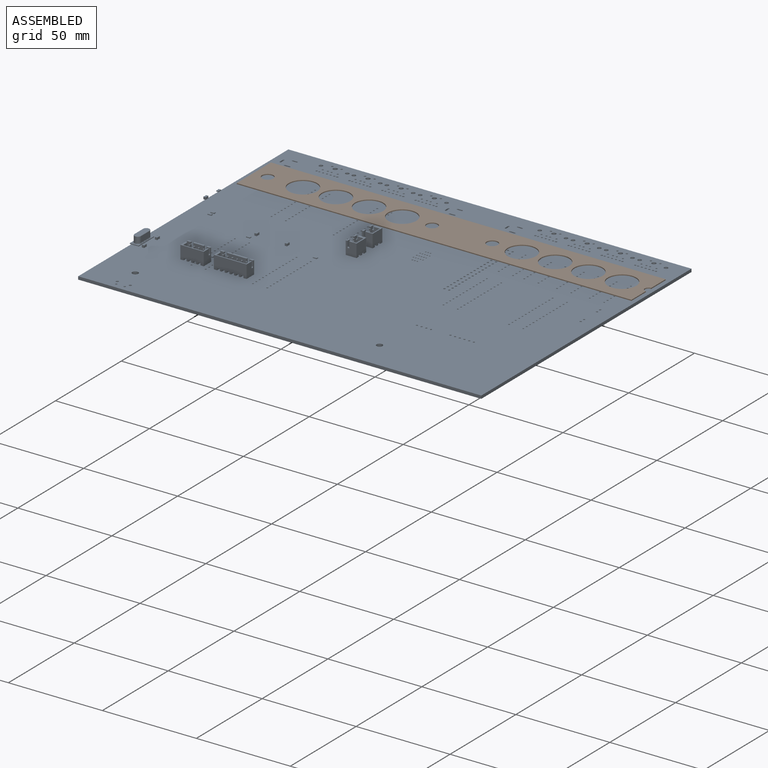
[diagram: assembled view]
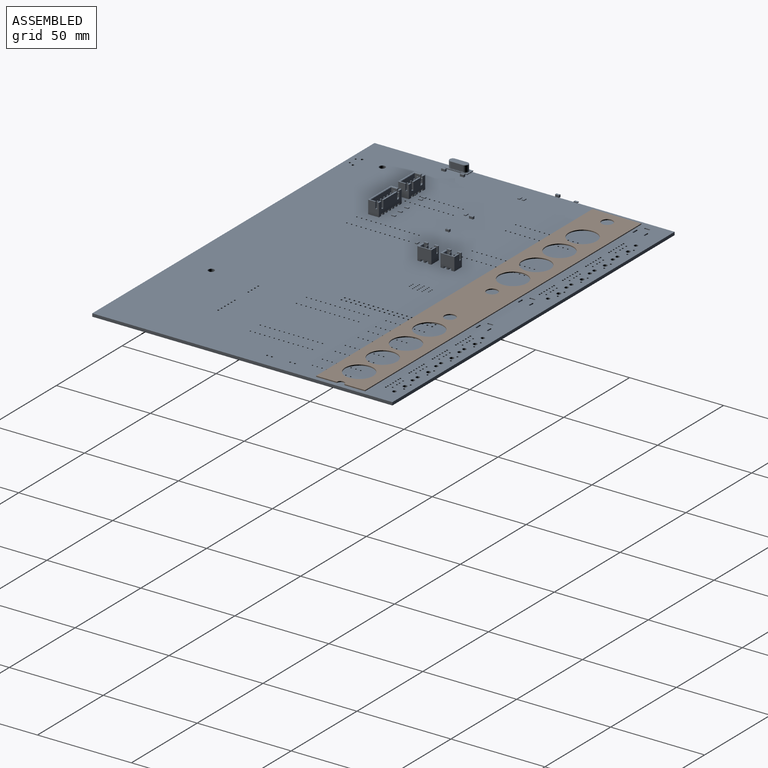
[diagram: assembled view, second angle]
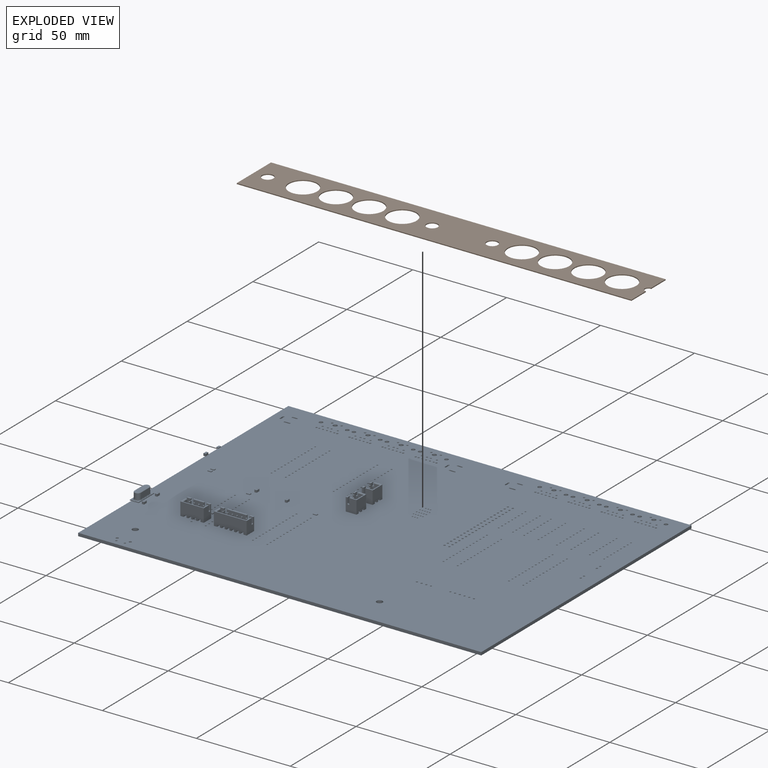
[diagram: exploded view]
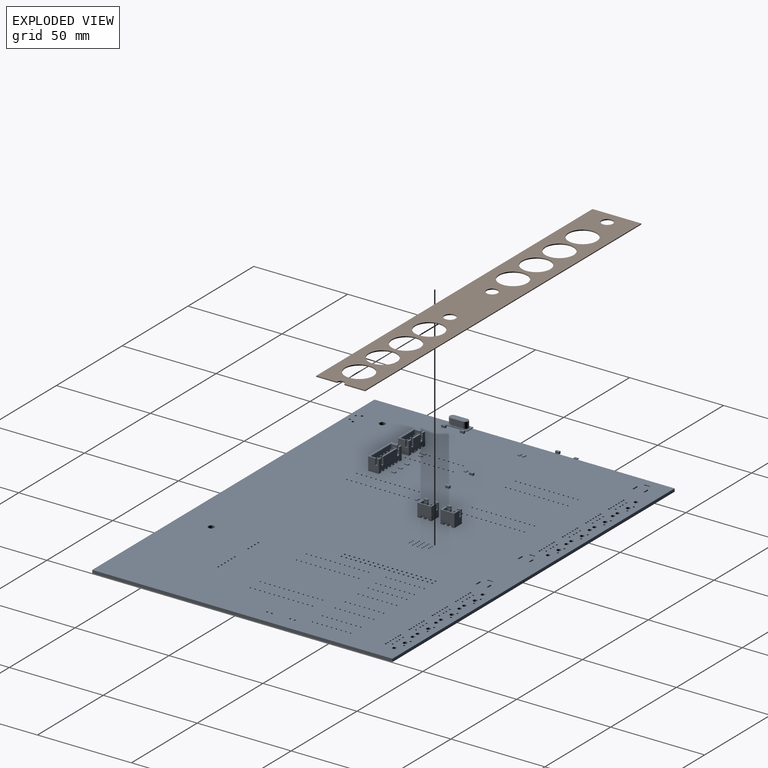
[diagram: exploded view, second angle]
FCSTD DOCUMENT  (FreeCAD 1.0R39109 (Git))
Label: railway_back_panel2
License: All rights reserved
LicenseURL: https://en.wikipedia.org/wiki/All_rights_reserved
objects: App::Link×19, Part::Feature×7, App::Part×4, Sketcher::SketchObject×3, PartDesign::Pad×2, PartDesign::CoordinateSystem×1, PartDesign::Pocket×1, PartDesign::Body×1
note: 24 computed .brp shape members not serialized (recipe doc carries the construction recipe); baked Part::Feature solids carry a one-line shape summary decoded from their .brp

FEATURE [Sketcher::SketchObject] Sketch
  ArcFitTolerance = 1e-06
  AttachmentSupport = -> [XY_Plane]
  FullyConstrained = true
  MakeInternals = false
  MapMode = 5
  sketch-geometry (8):
    g0: LineSegment StartX=-102.5 StartY=24.57 StartZ=0 EndX=-102.5 EndY=-1.43 EndZ=0
    g1: LineSegment StartX=-102.5 StartY=-1.43 StartZ=0 EndX=107.5 EndY=-1.43 EndZ=0
    g2: LineSegment StartX=107.5 StartY=-1.43 StartZ=0 EndX=107.5 EndY=24.57 EndZ=0
    g3: LineSegment StartX=107.5 StartY=24.57 StartZ=0 EndX=-102.5 EndY=24.57 EndZ=0
    g4: LineSegment [constr] StartX=-105 StartY=41 StartZ=0 EndX=-105 EndY=-9 EndZ=0
    g5: LineSegment [constr] StartX=-105 StartY=-9 StartZ=0 EndX=109.5 EndY=-9 EndZ=0
    g6: LineSegment [constr] StartX=109.5 StartY=-9 StartZ=0 EndX=109.5 EndY=41 EndZ=0
    g7: LineSegment [constr] StartX=109.5 StartY=41 StartZ=0 EndX=-105 EndY=41 EndZ=0
  constraints (24):
    c: Coincident(g0,g1)
    c: Coincident(g1,g2)
    c: Coincident(g2,g3)
    c: Coincident(g3,g0)
    c: Vertical(g2)
    c: Horizontal(g1)
    c: DistanceY(g0,g0) = 26
    c: DistanceX(g1,g1) = 210
    c: Coincident(g4,g5)
    c: Coincident(g5,g6)
    c: Coincident(g6,g7)
    c: Coincident(g7,g4)
    c: Vertical(g4)
    c: Vertical(g6)
    c: Horizontal(g5)
    c: Horizontal(g7)
    c: DistanceX(g2,g6) = 2
    c: Vertical(g0)
    c: DistanceY(g0,g4) = 16.43
    c: DistanceX(g7,g7) = 214.5
    c: DistanceX(g4,g-1) = 105
    c: DistanceY(g-1,g4) = 41
    c: Horizontal(g3)
    c: DistanceY(g4,g4) = 50
FEATURE [PartDesign::Pad] Pad
  Direction = (0,0,1)
  Length = 0.5
  Length2 = 10
  Profile = -> Sketch
  ReferenceAxis = -> Sketch [N_Axis]
  Refine = true
  Suppressed = false
  Type = 0
FEATURE [PartDesign::CoordinateSystem] Local_CS_d347
  AttacherType = Attacher::AttachEngine3D
  MapMode = 2
FEATURE [Part::Feature] Pcb_d347
  Placement = pos=(-119.5,56.86,0) rot=(0,0,1;0rad)
  shape: bbox 214.5 x 159.7 x 1.6 mm, 509 faces (baked)
FEATURE [Sketcher::SketchObject] PCB_Sketch_d347
  ArcFitTolerance = 1e-06
  FullyConstrained = false
  MakeInternals = false
  sketch-geometry (4):
    g0: LineSegment StartX=-11.12 StartY=40.79 StartZ=0 EndX=-11.12 EndY=-118.95 EndZ=0
    g1: LineSegment StartX=-225.62 StartY=40.79 StartZ=0 EndX=-225.62 EndY=-118.95 EndZ=0
    g2: LineSegment StartX=-225.62 StartY=40.79 StartZ=0 EndX=-11.12 EndY=40.79 EndZ=0
    g3: LineSegment StartX=-11.12 StartY=-118.95 StartZ=0 EndX=-225.62 EndY=-118.95 EndZ=0
  constraints (4):
    c: Coincident(g1,g3)
    c: Coincident(g1,g2)
    c: Coincident(g0,g3)
    c: Coincident(g0,g2)
FEATURE [App::Part] Board_Geoms_d347
  Group = -> [Pcb_d347,PCB_Sketch_d347]
  Origin = -> Origin001
FEATURE [Part::Feature] Shape001  label="R20_R_0805_2012Metric_8b4ad0b62f5e"
  Placement = pos=(-104.87,-11.81,0) rot=(0,0,-1;1.5708rad)
  shape: bbox 1.2 x 2 x 0.45 mm, 26 faces (baked)
FEATURE [Part::Feature] Shape004  label="Y1_Crystal_SMD_HC49-SD_456765e1dc0e"
  Placement = pos=(-102.982,-72.785,0) rot=(0,0,1;1.5708rad)
  shape: bbox 4.65 x 12.5 x 4 mm, 45 faces (baked)
FEATURE [App::Link] R20_R_0805_2012Metric_8b4ad0b62f5e_ln_003  label="R8_R_0805_2012Metric_bb9d68caa6b7"
  LinkPlacement = pos=(-30.62,-44.31,0) rot=(0,0,1;0rad)
  LinkedObject = -> Shape001
  Placement = pos=(-30.62,-44.31,0) rot=(0,0,1;0rad)
FEATURE [App::Link] U14_DIP_18_W762mm_Socket_0a1f9a504a51_ln_  label="U6_DIP_18_W762mm_Socket_c920a4e921de"
  LinkPlacement = pos=(-29.935,10.81,0) rot=(0,0,1;0rad)
  Placement = pos=(-29.935,10.81,0) rot=(0,0,1;0rad)
FEATURE [Part::Feature] Shape007  label="C9_C_0805_2012Metric_157590397889"
  Placement = pos=(-98.37,-67.6975,0) rot=(0,0,-1;1.5708rad)
  shape: bbox 1.25 x 2 x 1.25 mm, 28 faces (baked)
FEATURE [Part::Feature] Shape011  label="J3_JST_B2B_XH_A_e3afbfe7dc1d"
  Placement = pos=(-19.37,-19.31,0) rot=(0,0,1;1.5708rad)
  shape: bbox 5.75 x 7.4 x 10.4 mm, 89 faces (baked)
FEATURE [App::Link] C9_C_0805_2012Metric_157590397889_ln_002  label="C1_C_0805_2012Metric_2d2d150dc22f"
  LinkPlacement = pos=(-48.35,-40.47,0) rot=(0,0,-1;1.5708rad)
  LinkedObject = -> Shape007
  Placement = pos=(-48.35,-40.47,0) rot=(0,0,-1;1.5708rad)
FEATURE [App::Link] R20_R_0805_2012Metric_8b4ad0b62f5e_ln_009  label="R3_R_0805_2012Metric_dac404625c1f"
  LinkPlacement = pos=(-70.57,-68.7975,0) rot=(0,0,1;1.5708rad)
  LinkedObject = -> Shape001
  Placement = pos=(-70.57,-68.7975,0) rot=(0,0,1;1.5708rad)
FEATURE [App::Link] R20_R_0805_2012Metric_8b4ad0b62f5e_ln_014  label="R2_R_0805_2012Metric_dec1950a9088"
  LinkPlacement = pos=(-57.82,-68.885,0) rot=(0,0,-1;1.5708rad)
  LinkedObject = -> Shape001
  Placement = pos=(-57.82,-68.885,0) rot=(0,0,-1;1.5708rad)
FEATURE [App::Link] C9_C_0805_2012Metric_157590397889_ln_004  label="C8_C_0805_2012Metric_42e932186af8"
  LinkPlacement = pos=(-98.37,-77.625,0) rot=(0,0,1;1.5708rad)
  LinkedObject = -> Shape007
  Placement = pos=(-98.37,-77.625,0) rot=(0,0,1;1.5708rad)
FEATURE [App::Link] R20_R_0805_2012Metric_8b4ad0b62f5e_ln_017  label="R15_R_0805_2012Metric_39e75a84b51d"
  LinkPlacement = pos=(-47.82,-68.885,0) rot=(0,0,-1;1.5708rad)
  LinkedObject = -> Shape001
  Placement = pos=(-47.82,-68.885,0) rot=(0,0,-1;1.5708rad)
FEATURE [App::Link] C9_C_0805_2012Metric_157590397889_ln_006  label="C6_C_0805_2012Metric_6b491774266b"
  LinkPlacement = pos=(-104.87,-21.56,0) rot=(0,0,-1;1.5708rad)
  LinkedObject = -> Shape007
  Placement = pos=(-104.87,-21.56,0) rot=(0,0,-1;1.5708rad)
FEATURE [Part::Feature] Shape014  label="J5_JST_B4B_XH_A_566c48c3f301"
  Placement = pos=(-75.65,-75.72,0) rot=(0,0,1;0rad)
  shape: bbox 12.4 x 5.75 x 10.4 mm, 141 faces (baked)
FEATURE [Part::Feature] Shape015  label="J2_JST_B6B_XH_A_4f16ad57375a"
  Placement = pos=(-57.83,-75.72,0) rot=(0,0,1;0rad)
  shape: bbox 17.4 x 5.75 x 10.4 mm, 189 faces (baked)
FEATURE [App::Link] R20_R_0805_2012Metric_8b4ad0b62f5e_ln_023  label="R1_R_0805_2012Metric_8184897245e9"
  LinkPlacement = pos=(-52.82,-68.885,0) rot=(0,0,-1;1.5708rad)
  LinkedObject = -> Shape001
  Placement = pos=(-52.82,-68.885,0) rot=(0,0,-1;1.5708rad)
FEATURE [App::Link] D7_D_SMA_aeff1afc663d_ln_002  label="D8_D_SMA_8a337b0cc884"
  LinkPlacement = pos=(-118.12,0.69,0) rot=(0,0,-1;1.5708rad)
  Placement = pos=(-118.12,0.69,0) rot=(0,0,-1;1.5708rad)
FEATURE [App::Link] C9_C_0805_2012Metric_157590397889_ln_011  label="C4_C_0805_2012Metric_95f75f18563c"
  LinkPlacement = pos=(-65.12,-39.56,0) rot=(0,0,-1;1.5708rad)
  LinkedObject = -> Shape007
  Placement = pos=(-65.12,-39.56,0) rot=(0,0,-1;1.5708rad)
FEATURE [App::Link] D7_D_SMA_aeff1afc663d_ln_004  label="D3_D_SMA_0dc517940bf4"
  LinkPlacement = pos=(-118.12,11.44,0) rot=(0,0,-1;1.5708rad)
  Placement = pos=(-118.12,11.44,0) rot=(0,0,-1;1.5708rad)
FEATURE [App::Link] R20_R_0805_2012Metric_8b4ad0b62f5e_ln_025  label="R4_R_0805_2012Metric_80182c924571"
  LinkPlacement = pos=(-68.07,-68.7975,0) rot=(0,0,1;1.5708rad)
  LinkedObject = -> Shape001
  Placement = pos=(-68.07,-68.7975,0) rot=(0,0,1;1.5708rad)
FEATURE [App::Link] J3_JST_B2B_XH_A_e3afbfe7dc1d_ln_  label="J4_JST_B2B_XH_A_e036052e71d5"
  LinkPlacement = pos=(-19.37,-31.56,0) rot=(0,0,1;1.5708rad)
  LinkedObject = -> Shape011
  Placement = pos=(-19.37,-31.56,0) rot=(0,0,1;1.5708rad)
FEATURE [App::Link] D7_D_SMA_aeff1afc663d_ln_005  label="D9_D_SMA_4025ba7ff8da"
  LinkPlacement = pos=(-124.87,0.69,0) rot=(0,0,-1;1.5708rad)
  Placement = pos=(-124.87,0.69,0) rot=(0,0,-1;1.5708rad)
FEATURE [App::Link] R20_R_0805_2012Metric_8b4ad0b62f5e_ln_027  label="R13_R_0805_2012Metric_d526364c022d"
  LinkPlacement = pos=(-93.87,-31.81,0) rot=(0,0,1;0rad)
  LinkedObject = -> Shape001
  Placement = pos=(-93.87,-31.81,0) rot=(0,0,1;0rad)
FEATURE [App::Link] R20_R_0805_2012Metric_8b4ad0b62f5e_ln_031  label="R7_R_0805_2012Metric_e699191a3acd"
  LinkPlacement = pos=(-66.67,-43.6,0) rot=(0,0,1;0rad)
  LinkedObject = -> Shape001
  Placement = pos=(-66.67,-43.6,0) rot=(0,0,1;0rad)
FEATURE [App::Link] D7_D_SMA_aeff1afc663d_ln_006  label="D2_D_SMA_1a912a58f079"
  LinkPlacement = pos=(-124.87,11.44,0) rot=(0,0,-1;1.5708rad)
  Placement = pos=(-124.87,11.44,0) rot=(0,0,-1;1.5708rad)
FEATURE [App::Link] R20_R_0805_2012Metric_8b4ad0b62f5e_ln_035  label="R14_R_0805_2012Metric_250591143ca7"
  LinkPlacement = pos=(-93.87,-34.06,0) rot=(0,0,1;0rad)
  LinkedObject = -> Shape001
  Placement = pos=(-93.87,-34.06,0) rot=(0,0,1;0rad)
FEATURE [App::Part] Top_d347
  Group = -> [Shape001,Shape004,R20_R_0805_2012Metric_8b4ad0b62f5e_ln_003,U14_DIP_18_W762mm_Socket_0a1f9a504a51_ln_,Shape007,Shape011,C9_C_0805_2012Metric_157590397889_ln_002,R20_R_0805_2012Metric_8b4ad0b62f5e_ln_009,R20_R_0805_2012Metric_8b4ad0b62f5e_ln_014,C9_C_0805_2012Metric_157590397889_ln_004,R20_R_0805_2012Metric_8b4ad0b62f5e_ln_017,C9_C_0805_2012Metric_157590397889_ln_006,Shape014,Shape015,+11 more]
  Origin = -> Origin004
FEATURE [App::Part] Step_Models_d347
  Group = -> [Top_d347]
  Origin = -> Origin003
FEATURE [App::Part] Board_d347  label="railway"
  Group = -> [Local_CS_d347,Board_Geoms_d347,Step_Models_d347]
  Origin = -> Origin002
FEATURE [PartDesign::Pad] Pad001
  BaseFeature = -> Pad
  Direction = (0,0,1)
  Length = 0.5
  Length2 = 10
  Profile = -> Sketch
  ReferenceAxis = -> Sketch [N_Axis]
  Refine = true
  Suppressed = false
  Type = 0
FEATURE [Sketcher::SketchObject] Sketch001
  ArcFitTolerance = 1e-06
  AttachmentSupport = -> [Pad001]
  ExternalGeometry = -> [Pad001]
  FullyConstrained = true
  MakeInternals = false
  MapMode = 5
  Placement = pos=(0,0,0.5) rot=(0,0,1;0rad)
  sketch-geometry (24):
    g0: Circle CenterX=107.5 CenterY=11.57 CenterZ=0 NormalX=0 NormalY=0 NormalZ=1 AngleXU=0 Radius=2
    g1: LineSegment [constr] StartX=93.4 StartY=35.82 StartZ=0 EndX=93.4 EndY=-1.43 EndZ=0
    g2: LineSegment [constr] StartX=107.5 StartY=11.57 StartZ=0 EndX=-102.5 EndY=11.57 EndZ=0
    g3: LineSegment [constr] StartX=75.5 StartY=35.82 StartZ=0 EndX=75.5 EndY=-1.43 EndZ=0
    g4: LineSegment [constr] StartX=57.8 StartY=35.82 StartZ=0 EndX=57.8 EndY=-1.43 EndZ=0
    g5: LineSegment [constr] StartX=40.1 StartY=35.82 StartZ=0 EndX=40.1 EndY=-1.43 EndZ=0
    g6: LineSegment [constr] StartX=24.35 StartY=32.47 StartZ=0 EndX=24.35 EndY=-1.43 EndZ=0
    g7: LineSegment [constr] StartX=-7.65 StartY=32.47 StartZ=0 EndX=-7.65 EndY=-1.43 EndZ=0
    g8: LineSegment [constr] StartX=-23.55 StartY=35.85 StartZ=0 EndX=-23.55 EndY=-1.43 EndZ=0
    g9: LineSegment [constr] StartX=-41.2 StartY=35.85 StartZ=0 EndX=-41.2 EndY=-1.43 EndZ=0
    g10: LineSegment [constr] StartX=-58.85 StartY=35.85 StartZ=0 EndX=-58.85 EndY=-1.43 EndZ=0
    g11: LineSegment [constr] StartX=-76.4 StartY=35.85 StartZ=0 EndX=-76.4 EndY=-1.43 EndZ=0
    g12: LineSegment [constr] StartX=-95.15 StartY=32.17 StartZ=0 EndX=-95.15 EndY=-1.43 EndZ=0
    g13: Circle CenterX=93.4 CenterY=11.57 CenterZ=0 NormalX=0 NormalY=0 NormalZ=1 AngleXU=0 Radius=7.5
    g14: Circle CenterX=75.5 CenterY=11.57 CenterZ=0 NormalX=0 NormalY=0 NormalZ=1 AngleXU=0 Radius=7.5
    g15: Circle CenterX=57.8 CenterY=11.57 CenterZ=0 NormalX=0 NormalY=0 NormalZ=1 AngleXU=0 Radius=7.5
    g16: Circle CenterX=40.1 CenterY=11.57 CenterZ=0 NormalX=0 NormalY=0 NormalZ=1 AngleXU=0 Radius=7.5
    g17: Circle CenterX=24.35 CenterY=11.57 CenterZ=0 NormalX=0 NormalY=0 NormalZ=1 AngleXU=0 Radius=3
    g18: Circle CenterX=-7.65 CenterY=11.57 CenterZ=0 NormalX=0 NormalY=0 NormalZ=1 AngleXU=0 Radius=3
    g19: Circle CenterX=-23.55 CenterY=11.57 CenterZ=0 NormalX=0 NormalY=0 NormalZ=1 AngleXU=0 Radius=7.5
    g20: Circle CenterX=-41.2 CenterY=11.57 CenterZ=0 NormalX=0 NormalY=0 NormalZ=1 AngleXU=0 Radius=7.5
    g21: Circle CenterX=-58.85 CenterY=11.57 CenterZ=0 NormalX=0 NormalY=0 NormalZ=1 AngleXU=0 Radius=7.5
    g22: Circle CenterX=-76.4 CenterY=11.57 CenterZ=0 NormalX=0 NormalY=0 NormalZ=1 AngleXU=0 Radius=7.5
    g23: Circle CenterX=-95.15 CenterY=11.57 CenterZ=0 NormalX=0 NormalY=0 NormalZ=1 AngleXU=0 Radius=3
  constraints (82):
    c: Diameter(g0) = 4
    c: Vertical(g1)
    c: Coincident(g2,g0)
    c: Symmetric(g-6,g-6,g2)
    c: Horizontal(g2)
    c: Vertical(g3)
    c: Vertical(g4)
    c: Vertical(g5)
    c: Vertical(g6)
    c: Vertical(g7)
    c: Vertical(g8)
    c: Vertical(g9)
    c: Vertical(g10)
    c: Vertical(g11)
    c: Vertical(g12)
    c: DistanceY(g-6,g12) = 0
    c: DistanceY(g-6,g11) = 0
    c: DistanceY(g-6,g10) = 0
    c: DistanceY(g-6,g9) = 0
    c: DistanceY(g-6,g8) = 0
    c: DistanceY(g-6,g7) = 0
    c: DistanceY(g-5,g1) = 0
    c: DistanceY(g-5,g3) = 0
    c: DistanceY(g-5,g4) = 0
    c: DistanceY(g-5,g5) = 0
    c: DistanceY(g-5,g6) = 0
    c: DistanceX(g1,g-4) = 14.1
    c: DistanceX(g3,g1) = 17.9
    c: DistanceX(g4,g3) = 17.7
    c: DistanceY(g-4,g1) = 11.25
    c: DistanceY(g-4,g3) = 11.25
    c: DistanceY(g-4,g4) = 11.25
    c: DistanceY(g-4,g5) = 11.25
    c: DistanceX(g5,g4) = 17.7
    c: DistanceX(g6,g5) = 15.75
    c: DistanceX(g7,g6) = 32
    c: DistanceX(g8,g7) = 15.9
    c: DistanceY(g-5,g6) = 33.9
    c: DistanceY(g-5,g7) = 33.9
    c: DistanceY(g-5,g8) = 37.28
    c: DistanceY(g-6,g9) = 37.28
    c: DistanceY(g-6,g10) = 37.28
    c: DistanceY(g-6,g11) = 37.28
    c: DistanceY(g-6,g12) = 33.6
    c: DistanceX(g9,g8) = 17.65
    c: DistanceX(g10,g9) = 17.65
    c: DistanceX(g11,g10) = 17.55
    c: DistanceX(g12,g11) = 18.75
    c: DistanceX(g0,g-5) = 0
    c: Diameter(g13) = 15
    c: PointOnObject(g13,g2)
    c: Diameter(g14) = 15
    c: PointOnObject(g14,g3)
    c: Diameter(g15) = 15
    c: PointOnObject(g15,g4)
    c: Diameter(g16) = 15
    c: PointOnObject(g16,g2)
    c: Diameter(g17) = 6
    c: PointOnObject(g17,g2)
    c: Diameter(g18) = 6
    c: PointOnObject(g18,g7)
    c: Diameter(g19) = 15
    c: PointOnObject(g19,g8)
    c: Diameter(g20) = 15
    c: PointOnObject(g20,g9)
    c: Diameter(g21) = 15
    c: PointOnObject(g21,g10)
    c: Diameter(g22) = 15
    c: PointOnObject(g22,g11)
    c: Diameter(g23) = 6
    c: PointOnObject(g23,g12)
    c: DistanceY(g23,g2) = 0
    c: DistanceY(g2,g22) = 0
    c: DistanceY(g2,g21) = 0
    c: DistanceY(g20,g2) = 0
    c: DistanceY(g2,g19) = 0
    c: DistanceY(g2,g18) = 0
    c: DistanceX(g17,g6) = 0
    c: DistanceX(g16,g5) = 0
    c: DistanceY(g-5,g15) = 13
    c: DistanceY(g-5,g14) = 13
    c: DistanceX(g13,g1) = 0
FEATURE [PartDesign::Pocket] Pocket
  BaseFeature = -> Pad001
  Direction = (0,0,-1)
  Length = 5
  Length2 = 5
  Profile = -> Sketch001
  ReferenceAxis = -> Sketch001 [N_Axis]
  Refine = true
  Suppressed = false
  Type = 0
FEATURE [PartDesign::Body] Body
  AllowCompound = false
  Group = -> [Sketch,Pad,Pad001,Sketch001,Pocket]
  Origin = -> Origin
  Tip = -> Pocket
